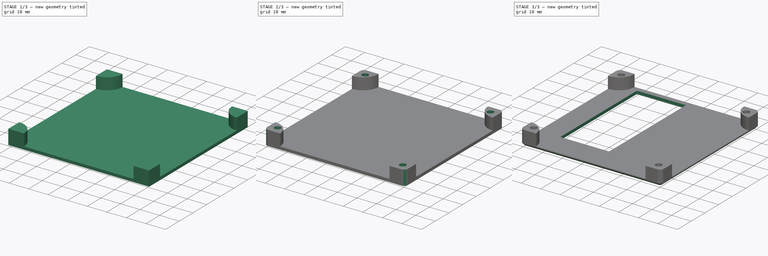
[diagram: build sequence overview — one tinted view per stage of 3, left to right]
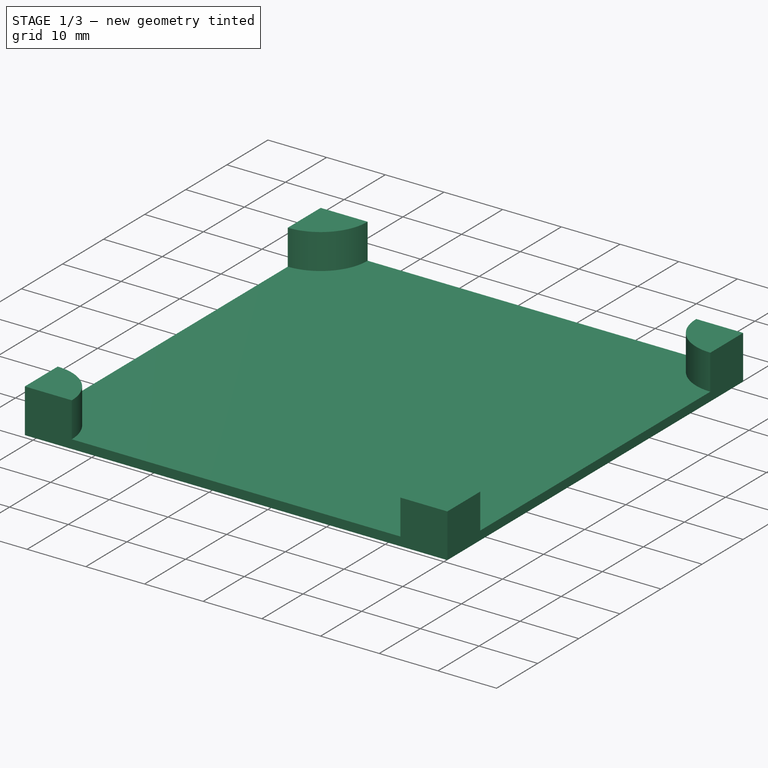
[diagram: stage 1 of 3 — iso view after this stage's code; geometry added in this stage tinted green]
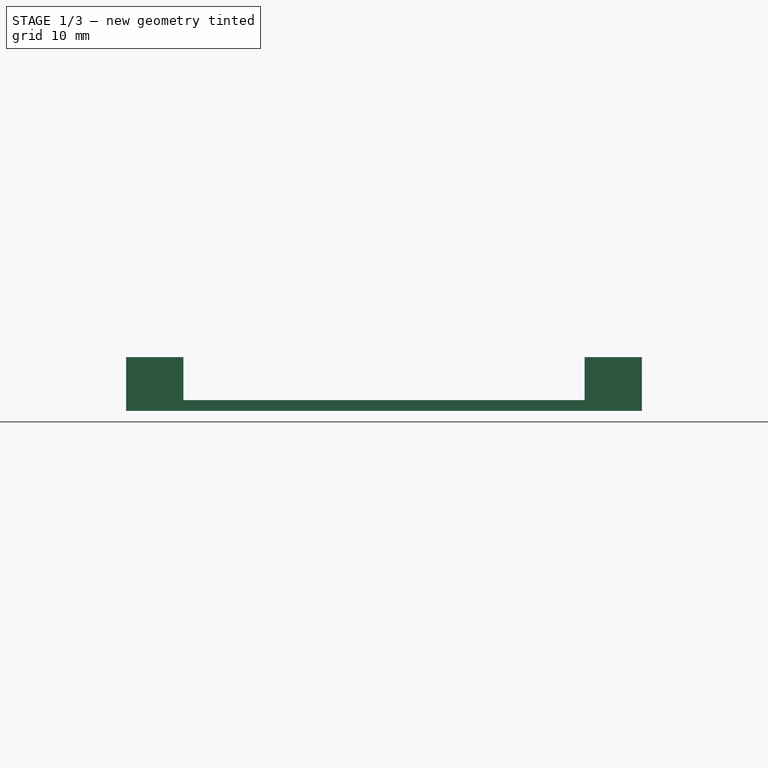
[diagram: stage 1 of 3 — front view after this stage's code; geometry added in this stage tinted green]
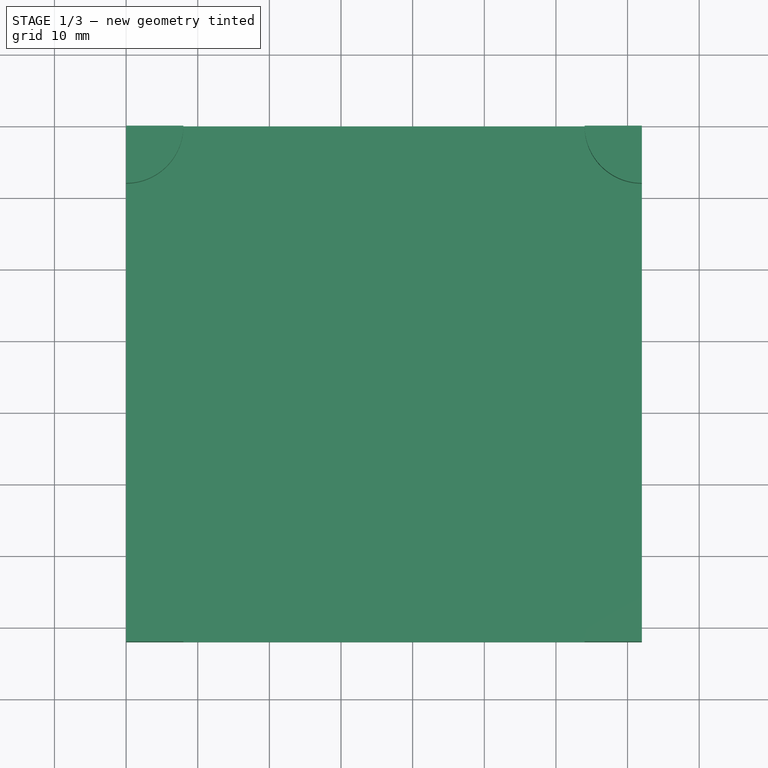
[diagram: stage 1 of 3 — top view after this stage's code; geometry added in this stage tinted green]
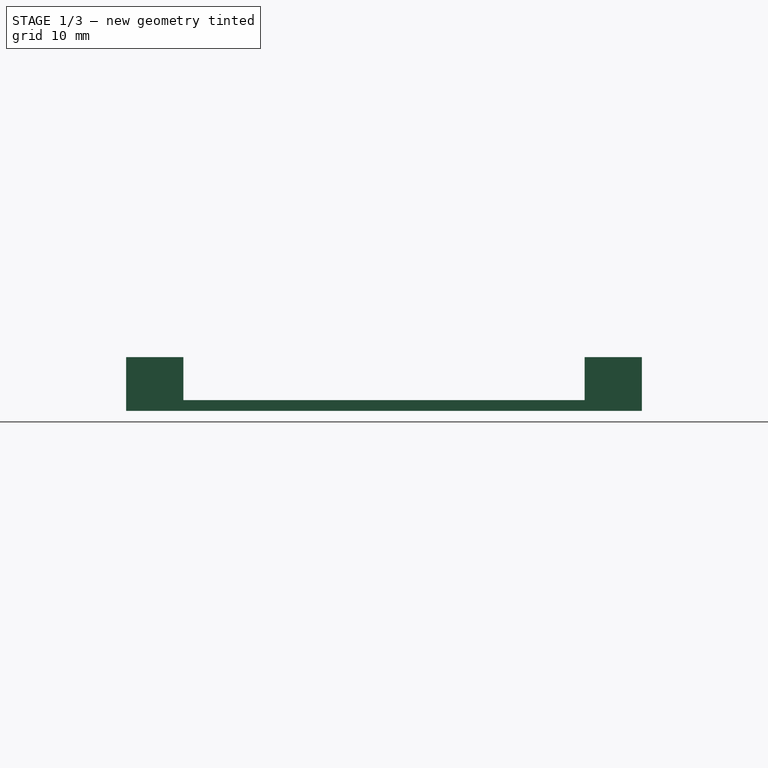
[diagram: stage 1 of 3 — right view after this stage's code; geometry added in this stage tinted green]
FCSTD DOCUMENT  (FreeCAD 0.19R24267 +99 (Git))
Label: Backplate_Stack
License: All rights reserved
LicenseURL: http://en.wikipedia.org/wiki/All_rights_reserved
objects: Sketcher::SketchObject×4, PartDesign::Pad×2, PartDesign::Pocket×2, PartDesign::Fillet×1, PartDesign::Chamfer×1, PartDesign::Body×1
note: 17 computed .brp shape members not serialized (recipe doc carries the construction recipe); baked Part::Feature solids carry a one-line shape summary decoded from their .brp

FEATURE [Sketcher::SketchObject] Sketch
  FullyConstrained = true
  MapMode = 5
  Support = -> [XY_Plane]
  sketch-geometry (4):
    g0: LineSegment StartX=0 StartY=0 StartZ=0 EndX=72 EndY=0 EndZ=0
    g1: LineSegment StartX=72 StartY=0 StartZ=0 EndX=72 EndY=-72 EndZ=0
    g2: LineSegment StartX=72 StartY=-72 StartZ=0 EndX=0 EndY=-72 EndZ=0
    g3: LineSegment StartX=0 StartY=-72 StartZ=0 EndX=0 EndY=0 EndZ=0
  constraints (11):
    c: Coincident(g0,g1)
    c: Coincident(g1,g2)
    c: Coincident(g2,g3)
    c: Coincident(g3,g0)
    c: Horizontal(g0)
    c: Horizontal(g2)
    c: Vertical(g1)
    c: Vertical(g3)
    c: Coincident(g0,g-1)
    c: DistanceX(g0,g0) = 72
    c: DistanceY(g1,g1) = 72
FEATURE [PartDesign::Pad] Pad
  Direction = (1,1,1)
  Length = 1.5
  Length2 = 100
  Profile = -> Sketch
  Type = 0
FEATURE [Sketcher::SketchObject] Sketch001
  FullyConstrained = true
  MapMode = 5
  Placement = pos=(0,0,1.5) rot=(0,0,1;0rad)
  Support = -> [Pad]
  sketch-geometry (16):
    g0: LineSegment StartX=0 StartY=0 StartZ=0 EndX=72 EndY=0 EndZ=0
    g1: LineSegment StartX=72 StartY=0 StartZ=0 EndX=72 EndY=-72 EndZ=0
    g2: LineSegment StartX=72 StartY=-72 StartZ=0 EndX=0 EndY=-72 EndZ=0
    g3: LineSegment StartX=0 StartY=-72 StartZ=0 EndX=0 EndY=0 EndZ=0
    g4: ArcOfCircle CenterX=0 CenterY=0 CenterZ=0 NormalX=0 NormalY=0 NormalZ=1 AngleXU=0 Radius=8 StartAngle=4.71239 EndAngle=6.28319
    g5: LineSegment StartX=0 StartY=-8 StartZ=0 EndX=0 EndY=0 EndZ=0
    g6: LineSegment StartX=0 StartY=0 StartZ=0 EndX=8 EndY=-2e-15 EndZ=0
    g7: ArcOfCircle CenterX=0 CenterY=-72 CenterZ=0 NormalX=0 NormalY=0 NormalZ=1 AngleXU=0 Radius=8 StartAngle=2e-16 EndAngle=1.5708
    g8: ArcOfCircle CenterX=72 CenterY=-72 CenterZ=0 NormalX=0 NormalY=0 NormalZ=1 AngleXU=0 Radius=8 StartAngle=1.5708 EndAngle=3.14159
    g9: ArcOfCircle CenterX=72 CenterY=0 CenterZ=0 NormalX=0 NormalY=0 NormalZ=1 AngleXU=0 Radius=8 StartAngle=3.14159 EndAngle=4.71239
    g10: LineSegment StartX=72 StartY=-8 StartZ=0 EndX=72 EndY=0 EndZ=0
    g11: LineSegment StartX=72 StartY=0 StartZ=0 EndX=64 EndY=0 EndZ=0
    g12: LineSegment StartX=64 StartY=-72 StartZ=0 EndX=72 EndY=-72 EndZ=0
    g13: LineSegment StartX=72 StartY=-72 StartZ=0 EndX=72 EndY=-64 EndZ=0
    g14: LineSegment StartX=8 StartY=-72 StartZ=0 EndX=0 EndY=-72 EndZ=0
    g15: LineSegment StartX=0 StartY=-72 StartZ=0 EndX=0 EndY=-64 EndZ=0
  constraints (43):
    c: Coincident(g0,g1)
    c: Coincident(g1,g2)
    c: Coincident(g2,g3)
    c: Coincident(g3,g0)
    c: Horizontal(g0)
    c: Horizontal(g2)
    c: Vertical(g3)
    c: Coincident(g0,g-1)
    c: DistanceY(g1,g1) = 72
    c: DistanceX(g0,g0) = 72
    c: Coincident(g4,g-1)
    c: PointOnObject(g4,g3)
    c: PointOnObject(g4,g0)
    c: Coincident(g5,g4)
    c: Coincident(g5,g4)
    c: Coincident(g6,g4)
    c: Coincident(g6,g4)
    c: PointOnObject(g7,g3)
    c: PointOnObject(g7,g2)
    c: Coincident(g8,g1)
    c: PointOnObject(g8,g2)
    c: PointOnObject(g8,g1)
    c: Coincident(g9,g0)
    c: PointOnObject(g9,g1)
    c: PointOnObject(g9,g0)
    c: Radius(g4) = 8
    c: Equal(g4,g9)
    c: Equal(g9,g7)
    c: Equal(g7,g8)
    c: Coincident(g10,g9)
    c: Coincident(g10,g9)
    c: Vertical(g10)
    c: Coincident(g11,g9)
    c: Coincident(g11,g9)
    c: Coincident(g12,g8)
    c: Coincident(g12,g8)
    c: Coincident(g13,g8)
    c: Coincident(g13,g8)
    c: Coincident(g14,g7)
    c: Coincident(g14,g2)
    c: Coincident(g15,g14)
    c: Coincident(g15,g7)
    c: Coincident(g7,g14)
FEATURE [PartDesign::Pad] Pad001
  BaseFeature = -> Pad
  Direction = (1,1,1)
  Length = 6
  Length2 = 100
  Profile = -> Sketch001
  Type = 0
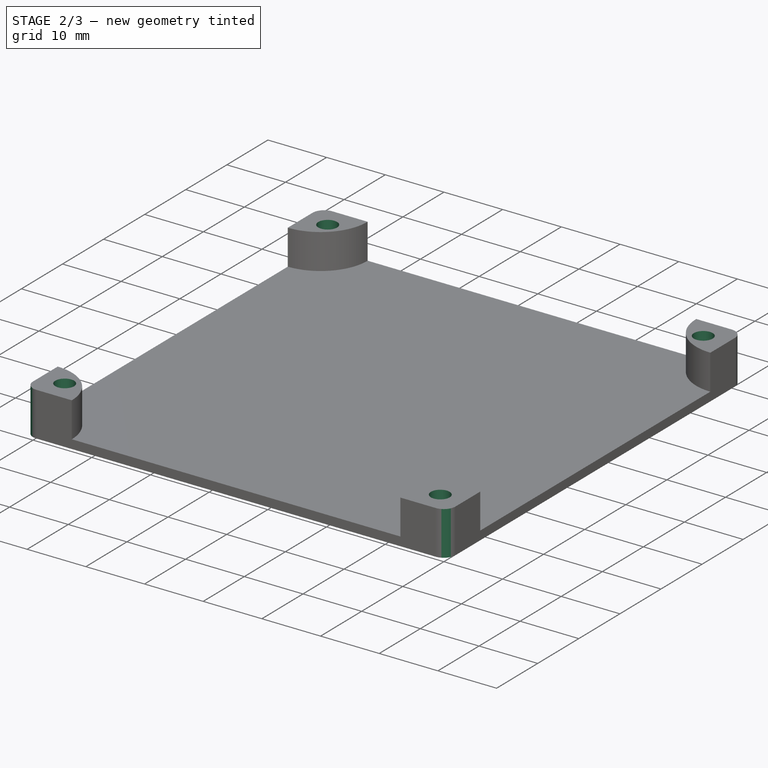
[diagram: stage 2 of 3 — iso view after this stage's code; geometry added in this stage tinted green]
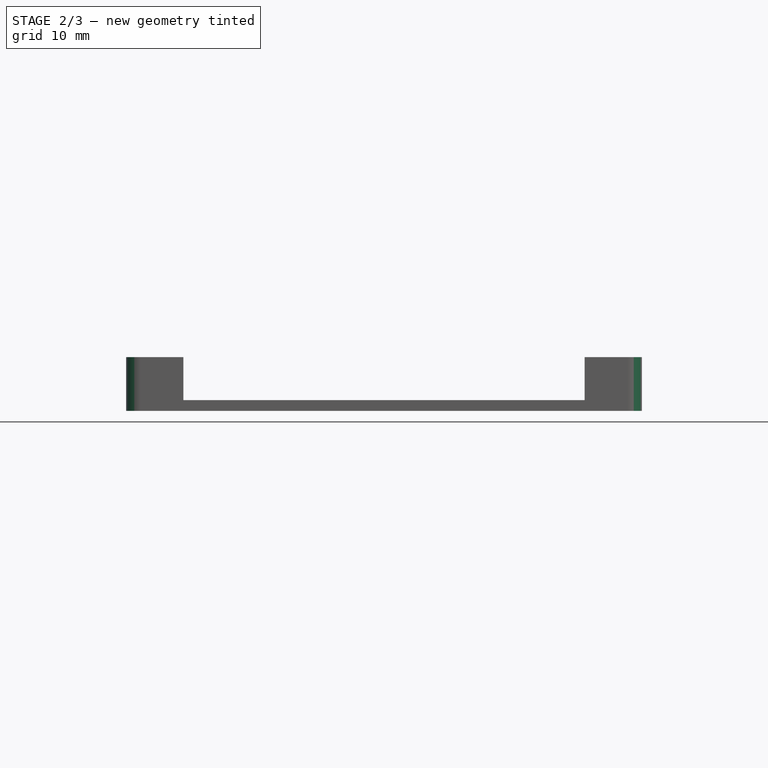
[diagram: stage 2 of 3 — front view after this stage's code; geometry added in this stage tinted green]
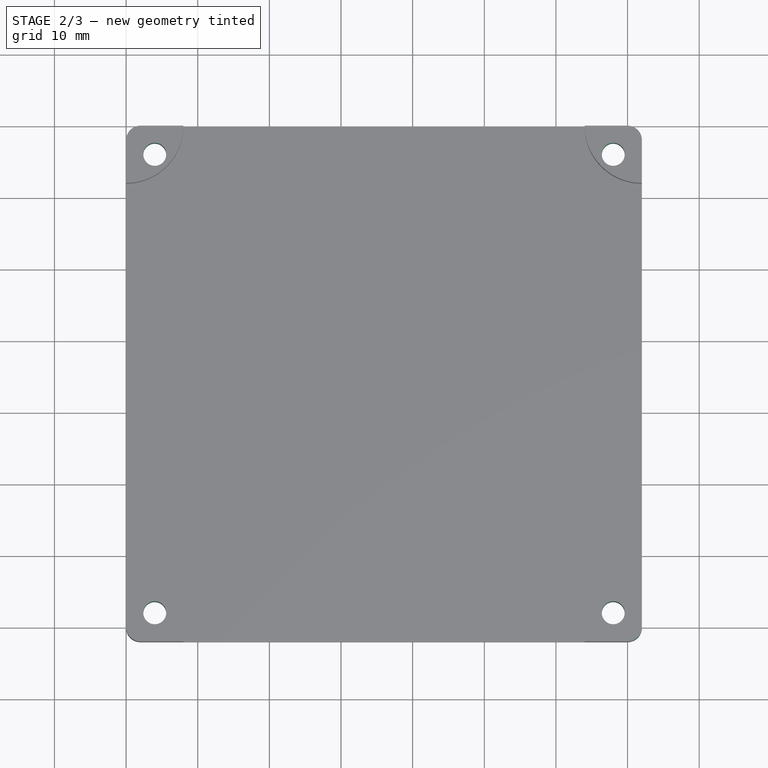
[diagram: stage 2 of 3 — top view after this stage's code; geometry added in this stage tinted green]
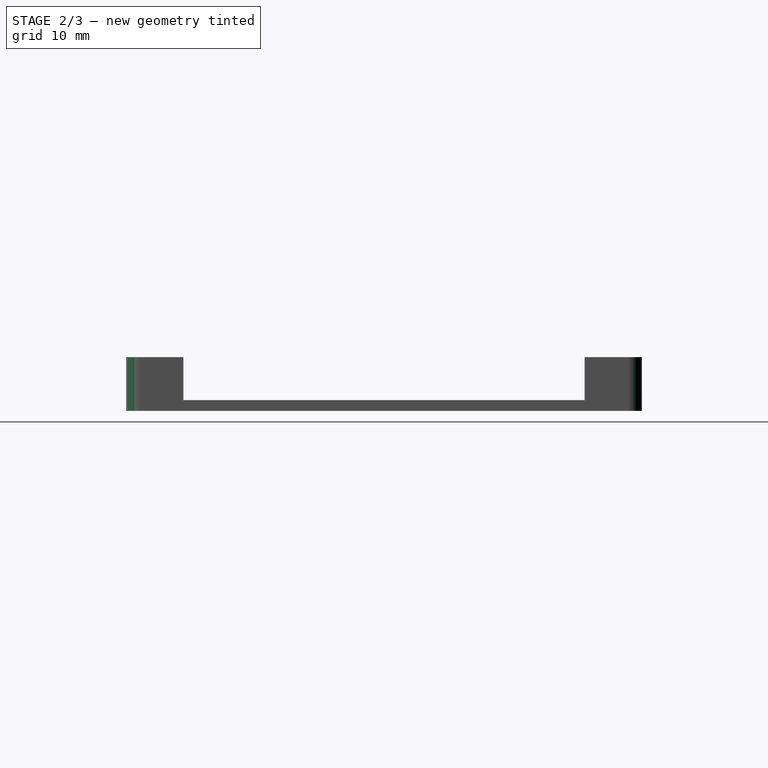
[diagram: stage 2 of 3 — right view after this stage's code; geometry added in this stage tinted green]
FEATURE [Sketcher::SketchObject] Sketch002
  FullyConstrained = true
  MapMode = 5
  Placement = pos=(0,0,7.5) rot=(0,0,1;0rad)
  Support = -> [Pad001]
  sketch-geometry (10):
    g0: LineSegment StartX=4 StartY=-4 StartZ=0 EndX=68 EndY=-4 EndZ=0
    g1: LineSegment StartX=68 StartY=-4 StartZ=0 EndX=68 EndY=-68 EndZ=0
    g2: LineSegment StartX=68 StartY=-68 StartZ=0 EndX=4 EndY=-68 EndZ=0
    g3: LineSegment StartX=4 StartY=-68 StartZ=0 EndX=4 EndY=-4 EndZ=0
    g4: Circle CenterX=4 CenterY=-4 CenterZ=0 NormalX=0 NormalY=0 NormalZ=1 AngleXU=0 Radius=1.6
    g5: Circle CenterX=68 CenterY=-4 CenterZ=0 NormalX=0 NormalY=0 NormalZ=1 AngleXU=0 Radius=1.6
    g6: Circle CenterX=68 CenterY=-68 CenterZ=0 NormalX=0 NormalY=0 NormalZ=1 AngleXU=0 Radius=1.6
    g7: Circle CenterX=4 CenterY=-68 CenterZ=0 NormalX=0 NormalY=0 NormalZ=1 AngleXU=0 Radius=1.6
    g8: LineSegment StartX=4 StartY=-4 StartZ=0 EndX=0 EndY=-4 EndZ=0
    g9: LineSegment StartX=4 StartY=-4 StartZ=0 EndX=4 EndY=0 EndZ=0
  constraints (26):
    c: Coincident(g0,g1)
    c: Coincident(g1,g2)
    c: Coincident(g2,g3)
    c: Coincident(g3,g0)
    c: Horizontal(g0)
    c: Horizontal(g2)
    c: Vertical(g1)
    c: Vertical(g3)
    c: DistanceY(g3,g3) = 64
    c: DistanceX(g0,g0) = 64
    c: Coincident(g4,g0)
    c: Coincident(g5,g0)
    c: Coincident(g6,g1)
    c: Coincident(g7,g2)
    c: Diameter(g4) = 3.2
    c: Equal(g4,g5)
    c: Equal(g5,g7)
    c: Equal(g7,g6)
    c: Coincident(g8,g4)
    c: PointOnObject(g8,g-2)
    c: Horizontal(g8)
    c: Coincident(g9,g4)
    c: PointOnObject(g9,g-1)
    c: Vertical(g9)
    c: DistanceX(g8,g8) = 4
    c: DistanceY(g9,g9) = 4
FEATURE [PartDesign::Pocket] Pocket
  BaseFeature = -> Pad001
  Length = 5
  Length2 = 100
  Profile = -> Sketch002
  Type = 1
FEATURE [PartDesign::Fillet] Fillet
  Base = -> Pocket [Edge22,Edge30,Edge35,Edge42]
  BaseFeature = -> Pocket
  Radius = 2
  SupportTransform = false
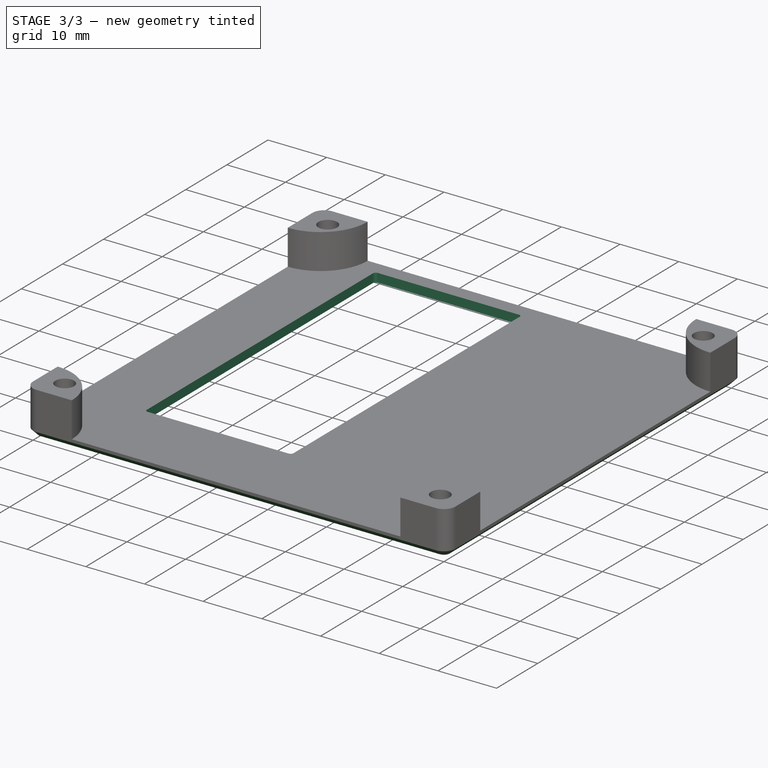
[diagram: stage 3 of 3 — iso view after this stage's code; geometry added in this stage tinted green]
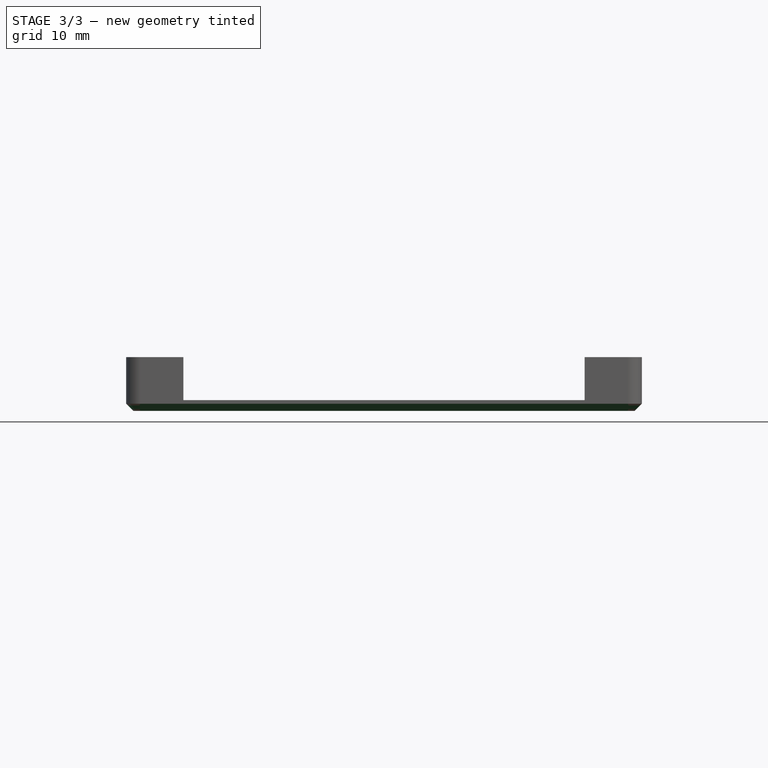
[diagram: stage 3 of 3 — front view after this stage's code; geometry added in this stage tinted green]
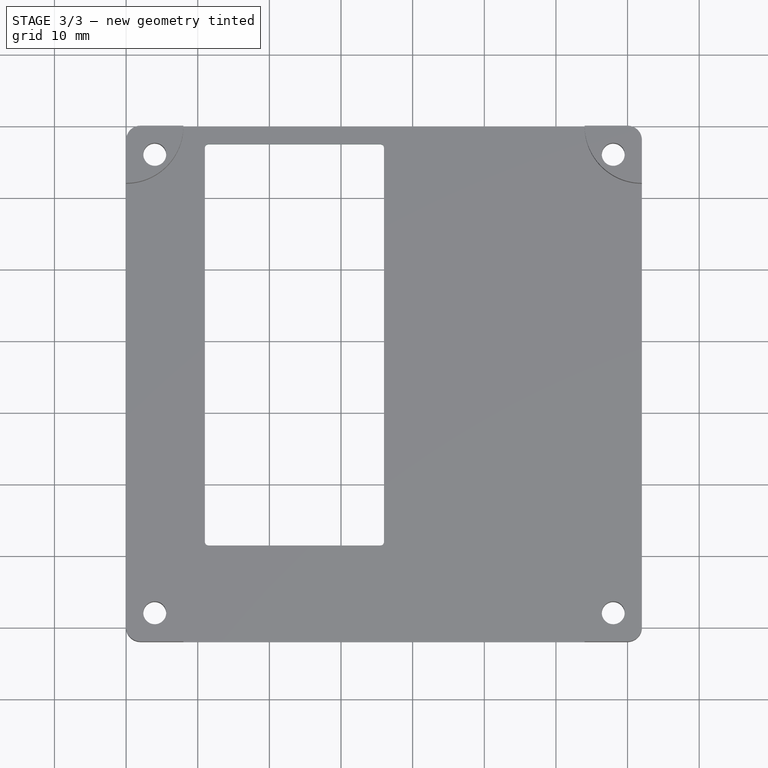
[diagram: stage 3 of 3 — top view after this stage's code; geometry added in this stage tinted green]
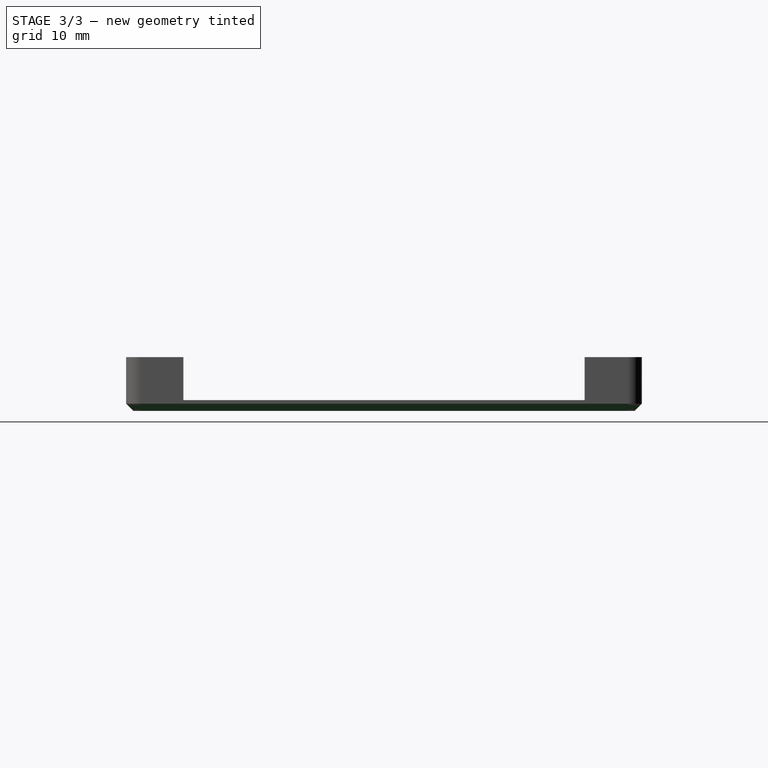
[diagram: stage 3 of 3 — right view after this stage's code; geometry added in this stage tinted green]
FEATURE [PartDesign::Chamfer] Chamfer
  Angle = 45
  Base = -> Fillet [Edge13]
  BaseFeature = -> Fillet
  ChamferType = 0
  FlipDirection = false
  Size = 1
  Size2 = 1
  SupportTransform = false
FEATURE [Sketcher::SketchObject] Sketch003
  FullyConstrained = true
  MapMode = 5
  Placement = pos=(0,0,0) rot=(1,0,0;3.14159rad)
  Support = -> [Chamfer]
  sketch-geometry (27):
    g0: LineSegment StartX=11 StartY=2.5 StartZ=0 EndX=36 EndY=2.5 EndZ=0
    g1: LineSegment StartX=36 StartY=2.5 StartZ=0 EndX=36 EndY=58.5 EndZ=0
    g2: LineSegment StartX=36 StartY=58.5 StartZ=0 EndX=11 EndY=58.5 EndZ=0
    g3: LineSegment StartX=11 StartY=58.5 StartZ=0 EndX=11 EndY=2.5 EndZ=0
    g4: Circle CenterX=4 CenterY=4 CenterZ=0 NormalX=0 NormalY=0 NormalZ=1 AngleXU=0 Radius=1.6
    g5: LineSegment StartX=4 StartY=4 StartZ=0 EndX=4 EndY=2.5 EndZ=0
    g6: LineSegment StartX=4 StartY=2.5 StartZ=0 EndX=11 EndY=2.5 EndZ=0
    g7: ArcOfCircle CenterX=11.5 CenterY=3 CenterZ=0 NormalX=0 NormalY=0 NormalZ=1 AngleXU=0 Radius=0.5 StartAngle=3.14159 EndAngle=4.71239
    g8: ArcOfCircle CenterX=35.5 CenterY=3 CenterZ=0 NormalX=0 NormalY=0 NormalZ=1 AngleXU=0 Radius=0.5 StartAngle=4.71239 EndAngle=6.28319
    g9: ArcOfCircle CenterX=35.5 CenterY=58 CenterZ=0 NormalX=0 NormalY=0 NormalZ=1 AngleXU=0 Radius=0.5 StartAngle=-2.75e-14 EndAngle=1.5708
    g10: ArcOfCircle CenterX=11.5 CenterY=58 CenterZ=0 NormalX=0 NormalY=0 NormalZ=1 AngleXU=0 Radius=0.5 StartAngle=1.5708 EndAngle=3.14159
    g11: LineSegment StartX=11.5 StartY=58.5 StartZ=0 EndX=35.5 EndY=58.5 EndZ=0
    g12: LineSegment StartX=36 StartY=58 StartZ=0 EndX=36 EndY=3 EndZ=0
    g13: LineSegment StartX=11.5 StartY=2.5 StartZ=0 EndX=35.5 EndY=2.5 EndZ=0
    g14: LineSegment StartX=11 StartY=3 StartZ=0 EndX=11 EndY=58 EndZ=0
    g15: LineSegment StartX=11.5 StartY=3 StartZ=0 EndX=35.5 EndY=3 EndZ=0
    g16: LineSegment StartX=35.5 StartY=3 StartZ=0 EndX=35.5 EndY=58 EndZ=0
    g17: LineSegment StartX=35.5 StartY=58 StartZ=0 EndX=11.5 EndY=58 EndZ=0
    g18: LineSegment StartX=11.5 StartY=58 StartZ=0 EndX=11.5 EndY=3 EndZ=0
    g19: LineSegment StartX=11.5 StartY=58 StartZ=0 EndX=11.5 EndY=58.5 EndZ=0
    g20: LineSegment StartX=35.5 StartY=58 StartZ=0 EndX=35.5 EndY=58.5 EndZ=0
    g21: LineSegment StartX=35.5 StartY=3 StartZ=0 EndX=35.5 EndY=2.5 EndZ=0
    g22: LineSegment StartX=35.5 StartY=3 StartZ=0 EndX=36 EndY=3 EndZ=0
    g23: LineSegment StartX=11.5 StartY=3 StartZ=0 EndX=11.5 EndY=2.5 EndZ=0
    g24: LineSegment StartX=11.5 StartY=3 StartZ=0 EndX=11 EndY=3 EndZ=0
    g25: LineSegment StartX=35.5 StartY=58 StartZ=0 EndX=36 EndY=58 EndZ=0
    g26: LineSegment StartX=11.5 StartY=58 StartZ=0 EndX=11 EndY=58 EndZ=0
  constraints (72):
    c: Coincident(g0,g1)
    c: Coincident(g1,g2)
    c: Coincident(g2,g3)
    c: Coincident(g3,g0)
    c: Horizontal(g0)
    c: Horizontal(g2)
    c: Vertical(g1)
    c: Vertical(g3)
    c: Diameter(g4) = 3.2
    c: DistanceX(g-1,g4) = 4
    c: DistanceY(g-1,g4) = 4
    c: Coincident(g5,g4)
    c: Vertical(g5)
    c: Coincident(g6,g5)
    c: Horizontal(g6)
    c: Coincident(g0,g6)
    c: DistanceX(g6,g6) = 7
    c: DistanceX(g0,g0) = 25
    c: DistanceY(g3,g3) = 56
    c: PointOnObject(g7,g3)
    c: PointOnObject(g7,g0)
    c: PointOnObject(g8,g1)
    c: PointOnObject(g8,g0)
    c: PointOnObject(g9,g2)
    c: PointOnObject(g9,g1)
    c: PointOnObject(g10,g2)
    c: PointOnObject(g10,g3)
    c: Coincident(g11,g10)
    c: Coincident(g11,g9)
    c: Coincident(g12,g9)
    c: Coincident(g12,g8)
    c: Coincident(g13,g7)
    c: Coincident(g13,g8)
    c: Coincident(g14,g7)
    c: Coincident(g14,g10)
    c: Radius(g10) = 0.5
    c: Equal(g10,g9)
    c: Equal(g9,g7)
    c: Equal(g7,g8)
    c: Coincident(g15,g7)
    c: Coincident(g15,g8)
    c: Coincident(g16,g8)
    c: Coincident(g16,g9)
    c: Coincident(g17,g9)
    c: Coincident(g17,g10)
    c: Coincident(g18,g10)
    c: Coincident(g18,g7)
    c: Coincident(g19,g10)
    c: Coincident(g19,g10)
    c: Vertical(g19)
    c: DistanceY(g5,g5) = 1.5
    c: Coincident(g20,g9)
    c: Coincident(g20,g9)
    c: Vertical(g20)
    c: Coincident(g21,g8)
    c: Coincident(g21,g8)
    c: Vertical(g21)
    c: Coincident(g22,g8)
    c: Coincident(g22,g8)
    c: Horizontal(g22)
    c: Coincident(g23,g7)
    c: Coincident(g23,g7)
    c: Vertical(g23)
    c: Coincident(g24,g7)
    c: Coincident(g24,g7)
    c: Horizontal(g24)
    c: Coincident(g25,g9)
    c: Coincident(g25,g9)
    c: Horizontal(g25)
    c: Coincident(g26,g10)
    c: Coincident(g26,g10)
    c: Horizontal(g26)
FEATURE [PartDesign::Pocket] Pocket001
  BaseFeature = -> Chamfer
  Length = 5
  Length2 = 100
  Profile = -> Sketch003
  Type = 0
FEATURE [PartDesign::Body] Body
  Group = -> [Sketch,Pad,Sketch001,Pad001,Sketch002,Pocket,Fillet,Chamfer,Sketch003,Pocket001]
  Origin = -> Origin
  Tip = -> Pocket001
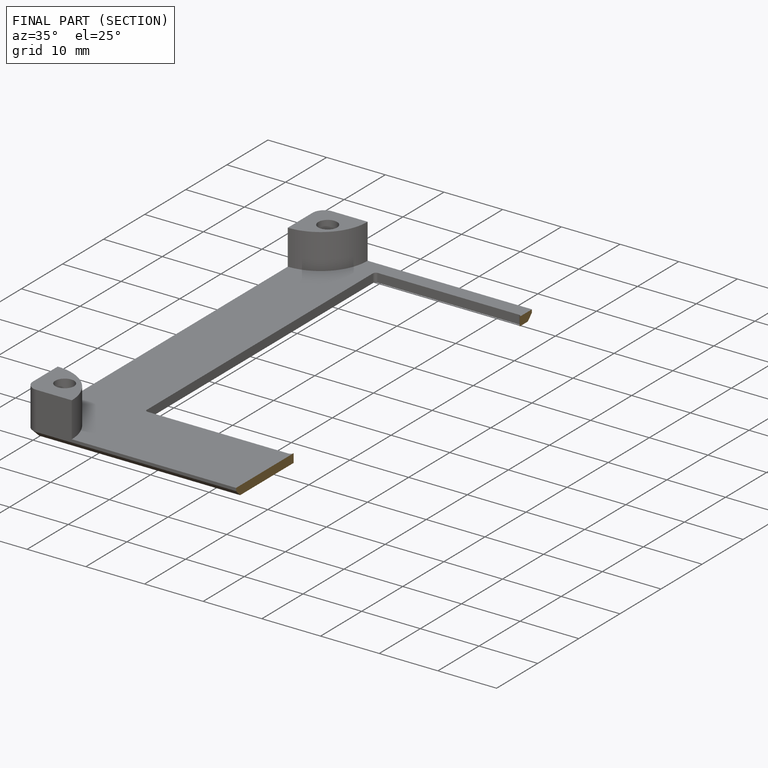
[diagram: finished part — half-section view (interior)]
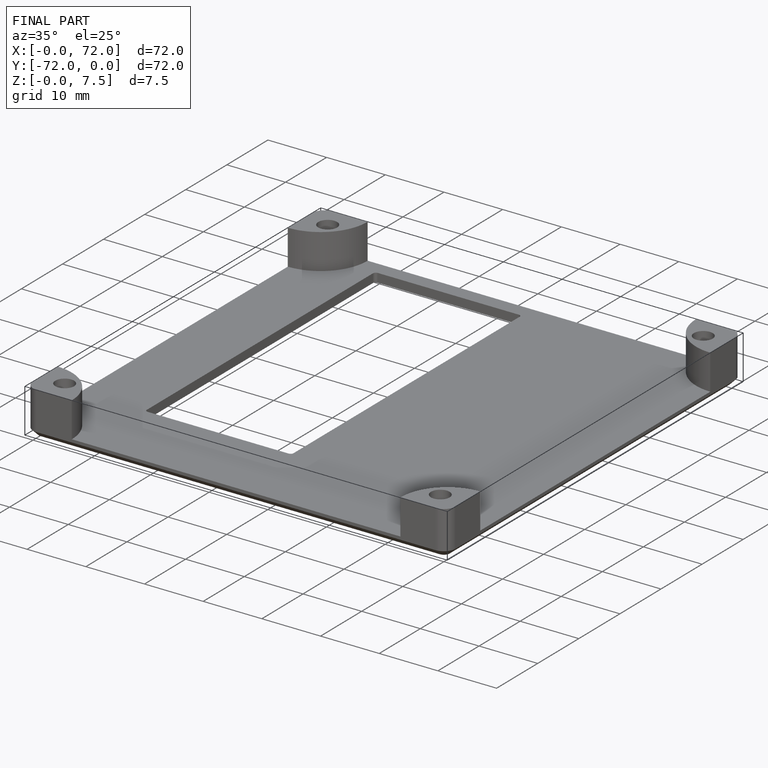
[diagram: finished part — iso view with bounding-box wireframe]
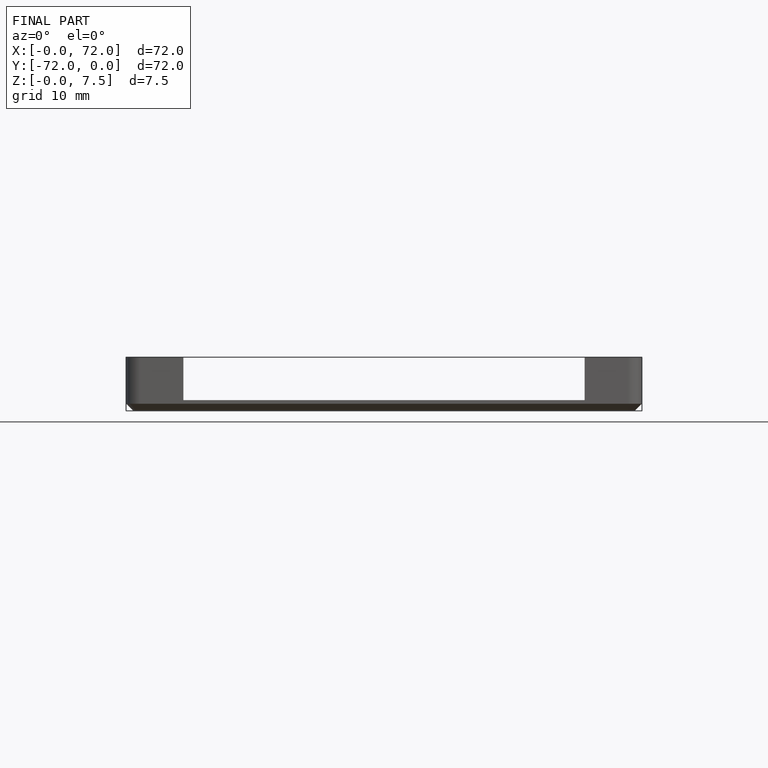
[diagram: finished part — front view with bounding-box wireframe]
